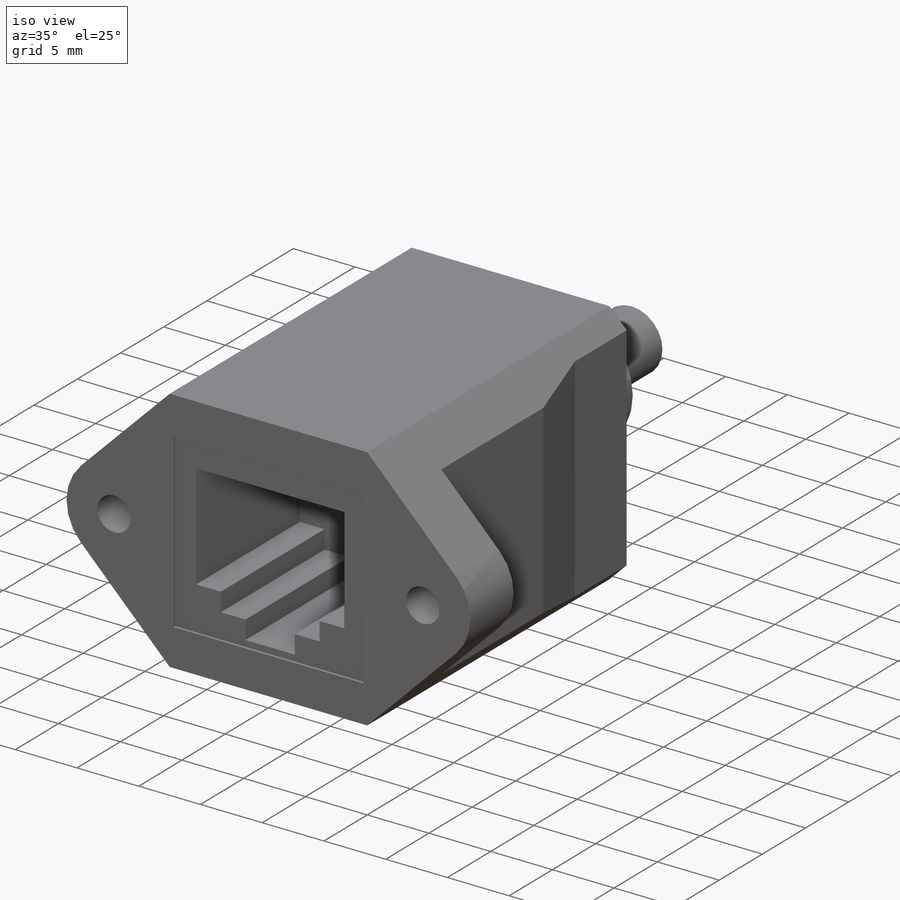
[diagram: iso view]
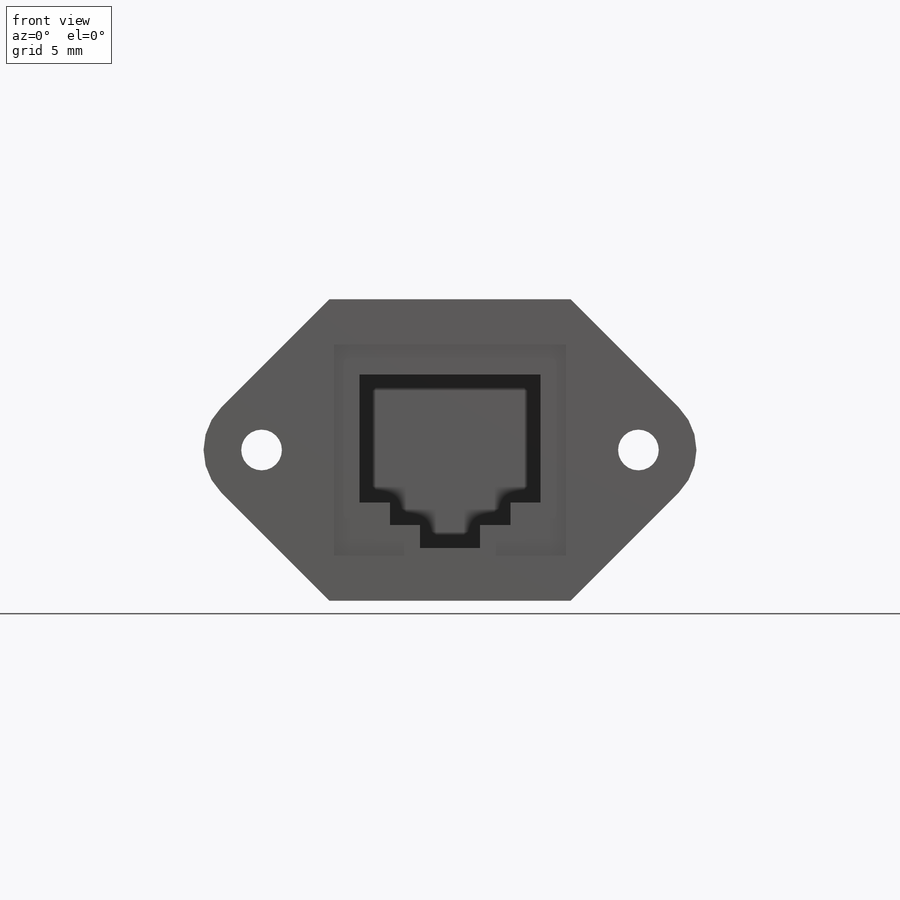
[diagram: front view]
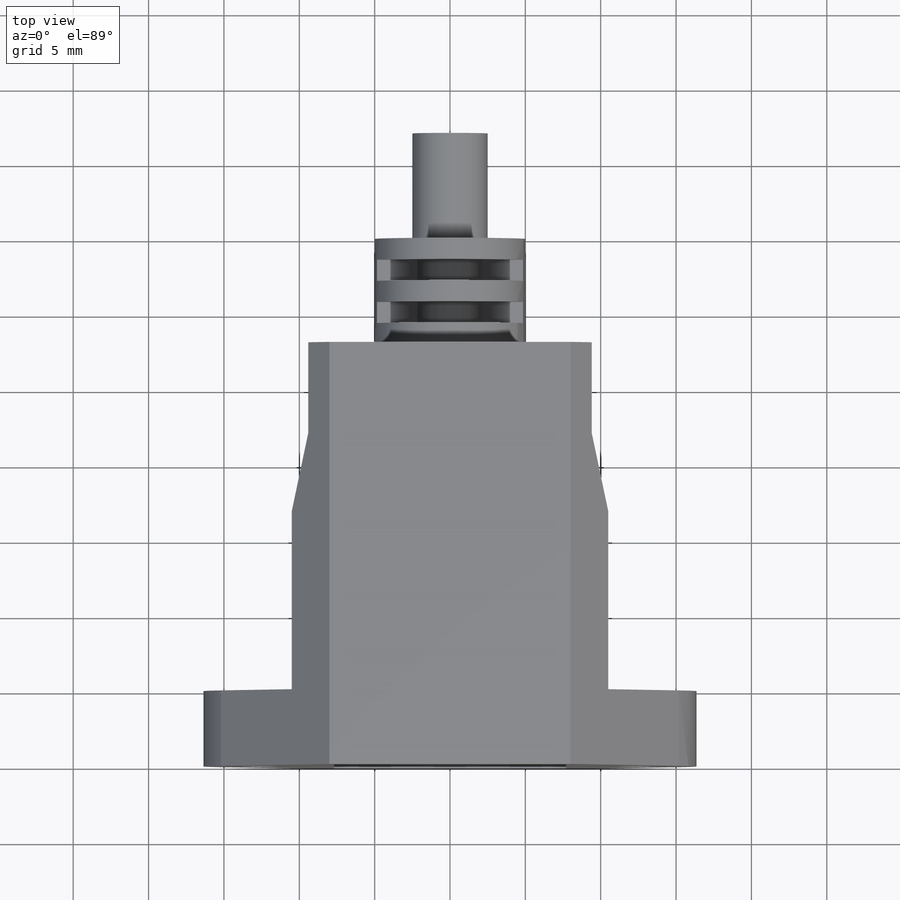
[diagram: top view]
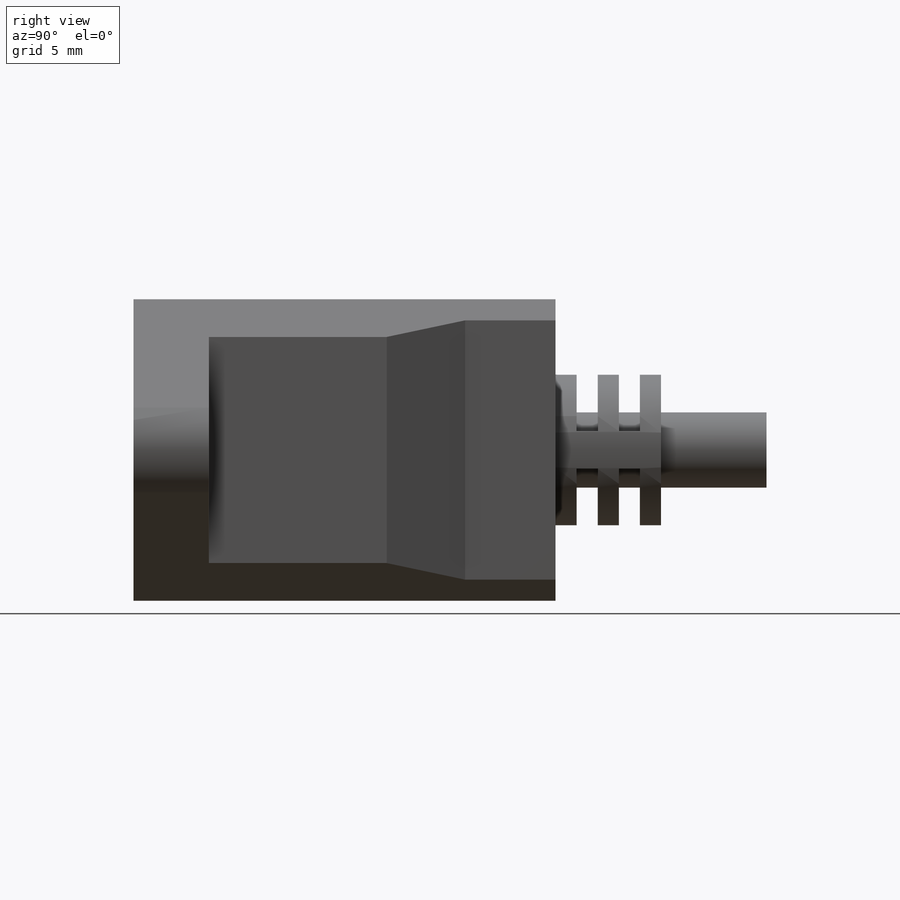
[diagram: right view]
SOLIDWORKS PART (.sldprt)
format: sldprt  version: not decoded by parser v0  size: 300,032 bytes
history: native  units: mm
features: sketch x8, cut_extrude x5, extrude x3, mirror x2, material x1, fillet x1 (+12 scaffold rows collapsed)
feature tree (32):
  scaffold x12  (default folders/planes/origin — collapsed)
  material  "Material <not specified>"
  sketch  "Sketch1"  dims[c1.D1=20.0mm c1.D2=~19.792156mm c2.D2=90.0deg c2.D3=16.0mm]
  extrude  "Boss-Extrude1"  Depth=28mm
  sketch  "Sketch2"  dims[c1.D1=~11.831709mm c2.D1=20.0deg c2.D2=10.5mm c2.D3=5.0mm c2.D4=9.4mm c2.D5=16.8mm c3.D1=22.0mm]
  cut_extrude  "Cut-Extrude1"  [1 undecoded]
  mirror  "Mirror1"
  sketch  "Sketch3"  dims[D2=2.7mm D1=25.0mm]
  cut_extrude  "Cut-Extrude2"  [1 undecoded]
  fillet  "Fillet1"  Radius=3.98mm
  sketch  "Sketch4"  dims[D1=10.0mm]
  extrude  "Boss-Extrude2"  Depth=7mm
  sketch  "Sketch6"  dims[D1=1.25mm]
  cut_extrude  "Cut-Extrude3"  [1 undecoded]
  mirror  "Mirror2"
  sketch  "Sketch5"  dims[D1=5.0mm]
  extrude  "Boss-Extrude3"  Depth=7mm
  sketch  "Sketch7"  dims[D1=15.4mm D2=14.0mm]
  cut_extrude  "Cut-Extrude4"  Depth=0.2mm
  sketch  "Sketch8"  dims[D1=12.0mm D2=8.0mm D3=4.0mm D4=1.5mm D5=1.5mm D6=2.0mm D7=11.5mm]
  cut_extrude  "Cut-Extrude5"  Depth=12mm
decode coverage: 14 of 19 modeling features carry decoded parameters
note: ~ marks probable driven/reference dimensions
note: 3 parameter values undecoded
summary: no parameter record found for 3 features
note: suppression state not decoded; provenance and decode notes live in map.json
